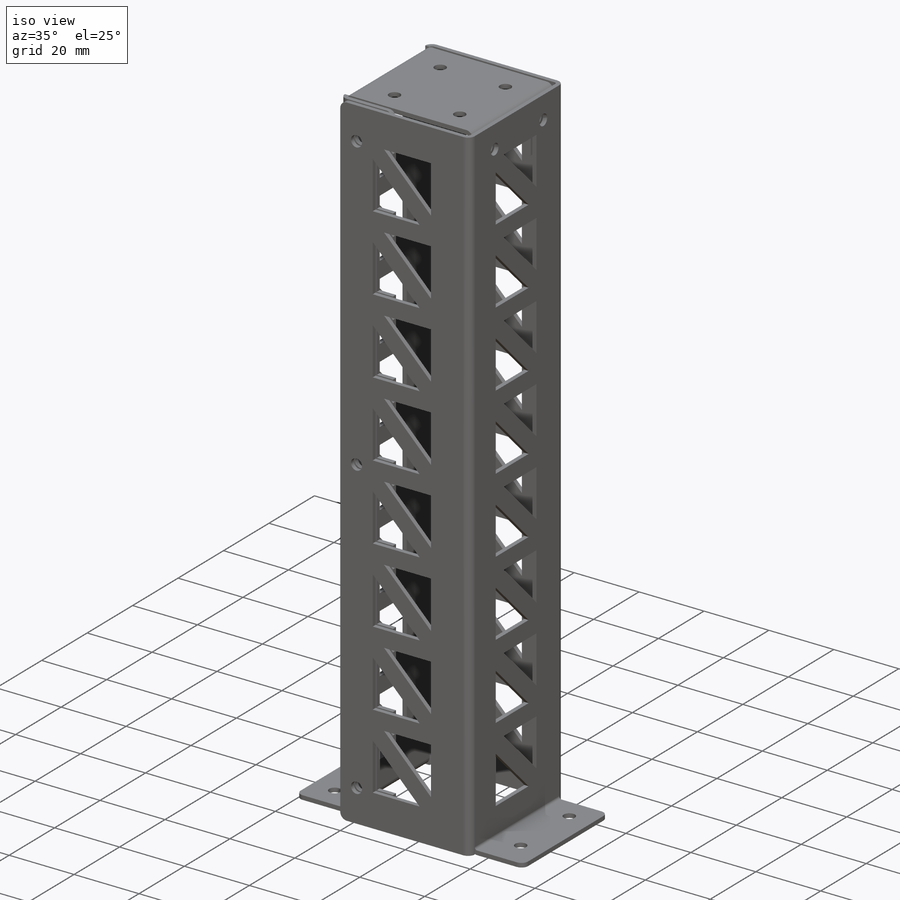
[diagram: iso view]
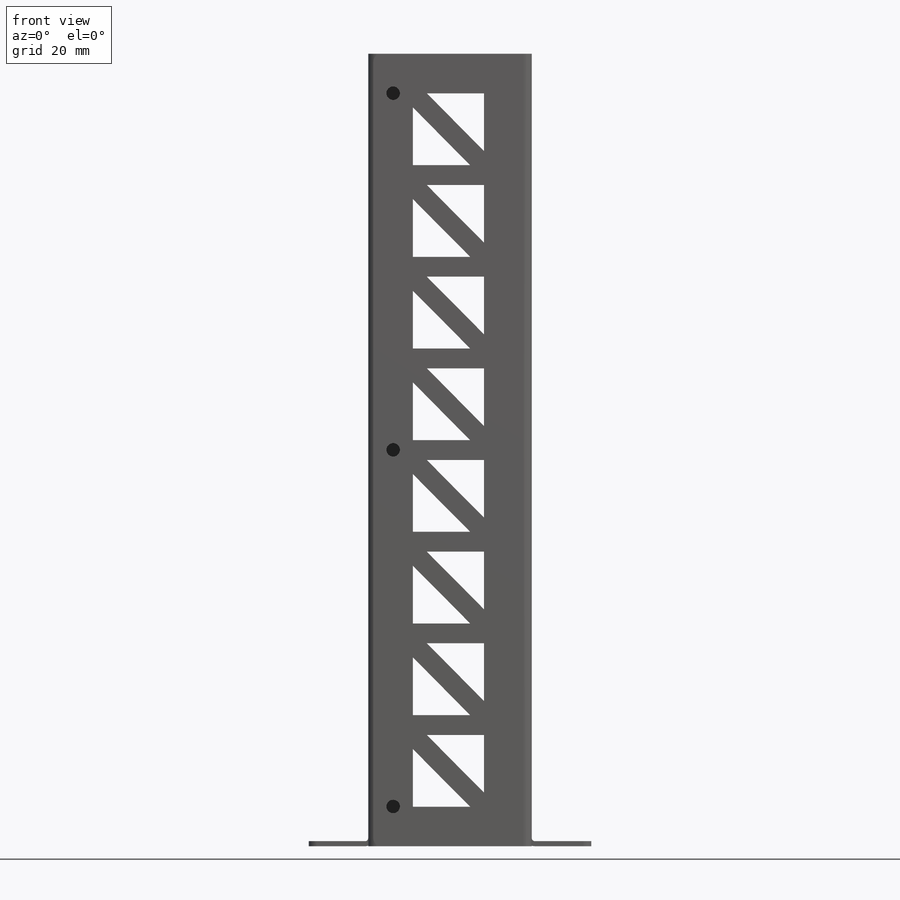
[diagram: front view]
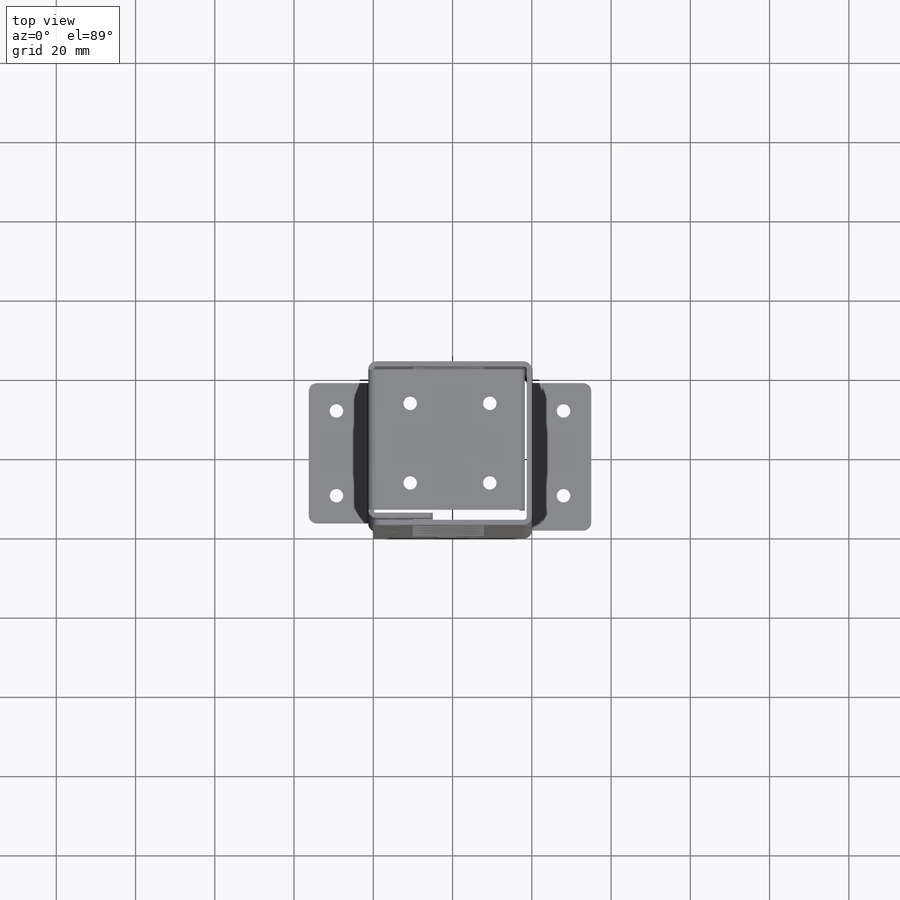
[diagram: top view]
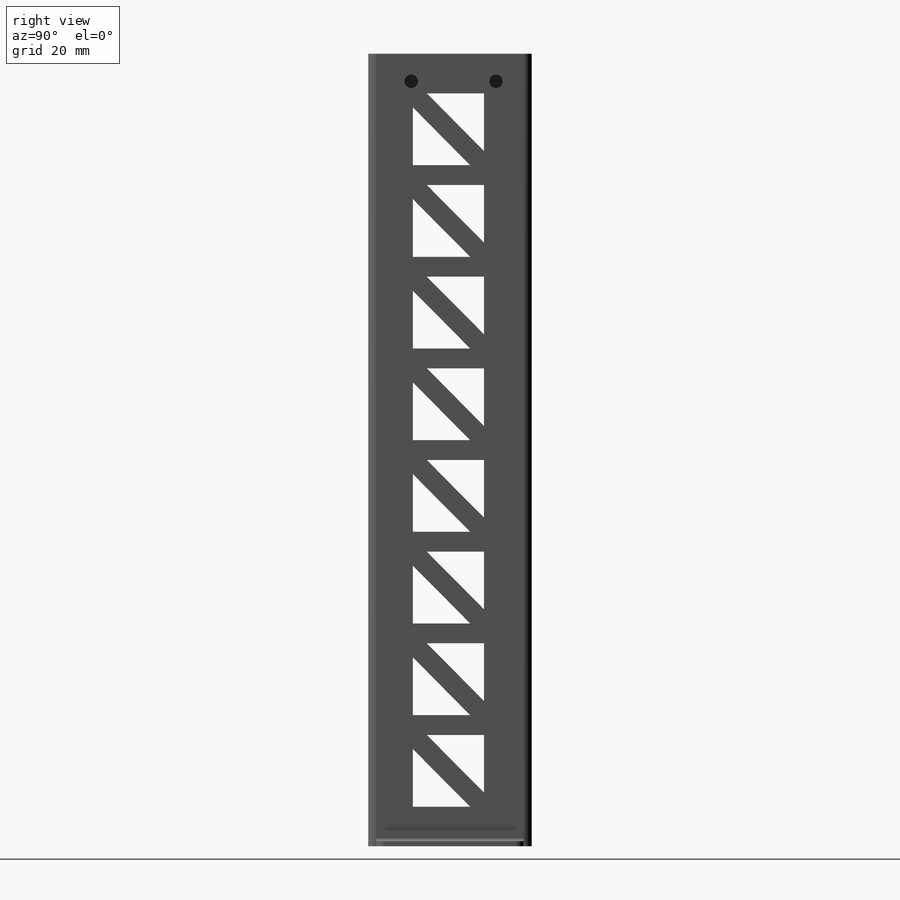
[diagram: right view]
SOLIDWORKS PART (.sldprt)
format: sldprt  version: not decoded by parser v0  size: 1,256,448 bytes
history: native  units: mm
features: sketch x56, sheet_metal_op x25, fillet x17, hole x4, plane x2, material x1, cut_extrude x1, pattern_linear x1, pattern_circular x1, mirror x1 + 100 further entries (+12 scaffold rows collapsed; 17 parser-record rows omitted)
feature tree (238):
  scaffold x12  (default folders/planes/origin — collapsed)
  material  "6061 Alloy"
  sketch  "Sketch2"  dims[c1.D1=~85.204267mm c1.D2=~48.53653mm c2.D1=40.0mm c2.D2=200.0mm c3.D1=0.762mm c3.D2=0.389 c3.D3=1.1938mm c3.D6=500.0mm]
  sheet_metal_op  "Base-Flange1"
  sketch  "Sketch9"  dims[c1.D1=0.762mm c1.D4=90.0deg c1.D5=1.0 c1.D8=0.645mm c1.D9=0.645mm c2.D1=0.762mm c2.D2=500.0mm c2.D3=0.0mm c2.D6=10.0mm c2.D7=40.0mm c2.Edge-Flange2=0.0]
  sketch  "Sketch12"
  sheet_metal_op  "EdgeBend2"  Edge-Flange3=0
  sketch  "Sketch15"  dims[c1.D1=58.0mm c1.D2=0.71mm c2.D1=0.5mm]
  sheet_metal_op  "EdgeBend3"  Edge-Flange4=0
  sketch  "Sketch18"
  sheet_metal_op  "EdgeBend4"  Edge-Flange5=0
  sketch  "Sketch21"
  sheet_metal_op  "EdgeBend5"  Edge-Flange6=0
  sketch  "Sketch24"
  sheet_metal_op  "EdgeBend6"  Edge-Flange8=0
  sketch  "Sketch30"  dims[D1=0.5mm]
  sheet_metal_op  "EdgeBend8"  Edge-Flange9=0
  sketch  "Sketch33"
  sheet_metal_op  "EdgeBend9"
  sketch  "Sketch37"  dims[c1.D2=~29.144602mm c1.D3=~29.144602mm c1.D4=~29.144602mm c1.D5=~29.144602mm c2.D2=42.948mm c2.D3=~48.778031mm c2.D1=7.5mm c3.D2=2.5mm c3.D3=2.5mm c3.D4=2.5mm c3.D5=2.5mm c4.D2=2.5mm c4.D3=2.5mm]
  cut_extrude  "Speed Hole"  [1 undecoded]
  pattern_linear  "Speed Holes"  Count1=8 Count2=1 Spacing1=23.13mm Spacing2=50mm
  plane  "Plane1"
  plane  "Plane2"
  pattern_circular  "Copy of Speed Holes"  Count=2 Angle=90deg
  hole  "M3 Clearance Hole1"  Diameter=3.4mm Depth=12mm
  sketch  "Sketch40"  dims[D1=7.0mm D2=7.0mm D3=7.0mm]
  sketch  "Sketch39"  dims[hole-wizard template sketch: 50 standard entries collapsed; hole parameters above]
  mirror  "Copy of M3 Hole1"
  sketch  "Top Lid Hole Alignment"  dims[c1.D1=~60.087966mm c1.D2=~60.087966mm c2.D1=10.0mm]
  hole  "M3 Clearance Hole2"  Diameter=3.4mm Depth=1.29mm
  sketch  "Sketch43"
  sketch  "Sketch42"  dims[hole-wizard template sketch: 60 standard entries collapsed; hole parameters kept: c18.Thru Hole Depth=1.29mm]
  hole  "M3 Clearance Hole3"  Diameter=3.4mm Depth=3.079mm
  sketch  "Sketch45"  dims[c1.D1=10.0mm c1.D2=10.0mm c2.D1=10.0mm c2.D2=10.0mm]
  sketch  "Sketch44"  dims[hole-wizard template sketch: 47 standard entries collapsed; hole parameters kept: c15.Hole Depth=3.079mm c15.D3=~14.816244mm c15.Drill Angle=118.0deg]
  hole  "M3 Clearance Hole4"  Diameter=3.4mm Depth=3.079mm
  sketch  "Sketch47"  dims[D1=7.0mm D2=7.0mm D3=7.0mm]
  sketch  "Sketch46"  dims[hole-wizard template sketch: 47 standard entries collapsed; hole parameters kept: c15.Hole Depth=3.079mm c15.D3=~14.816244mm c15.Drill Angle=118.0deg]
  fillet  "Fillet1"  Radius=2mm
  sketch  "Bend-Lines1"
  sketch  "Bounding-Box1"
  sheet_metal_op  "Sheet-Metal(1)"
  "Flat-Pattern(1)"
  sketch  "Bend-Lines2"
  sketch  "Bounding-Box2"
  parser-record x17  (decoder bookkeeping rows leaked as tree rows — omitted from the tree; the rows remain in map.json)
  fillet  "Sheet-Metal(2)"  Radius=0.762mm
  sheet_metal_op  "Flat-Pattern(1)"
  sketch  "Bend-Lines2"
  sketch  "Bounding-Box2"
  fillet  "Sheet-Metal(3)"  Radius=0.762mm
  sheet_metal_op  "Flat-Pattern(1)"
  sketch  "Bend-Lines2"
  sketch  "Bounding-Box2"
  "Flatten-<EdgeBend1>1"
  "Flatten-<EdgeBend2>1"
  fillet  "Sheet-Metal(4)"  Radius=0.762mm
  sheet_metal_op  "Flat-Pattern(1)"
  sketch  "Bend-Lines2"
  sketch  "Bounding-Box2"
  "Flatten-<EdgeBend1>1"
  "Flatten-<EdgeBend2>1"
  "Flatten-<EdgeBend3>1"
  fillet  "Sheet-Metal(5)"  Radius=0.762mm
  sheet_metal_op  "Flat-Pattern(1)"
  sketch  "Bend-Lines2"
  sketch  "Bounding-Box2"
  "Flatten-<EdgeBend1>1"
  "Flatten-<EdgeBend2>1"
  "Flatten-<EdgeBend3>1"
  "Flatten-<EdgeBend4>1"
  fillet  "Sheet-Metal(6)"  Radius=0.762mm
  sheet_metal_op  "Flat-Pattern(1)"
  sketch  "Bend-Lines2"
  sketch  "Bounding-Box2"
  "Flatten-<EdgeBend1>1"
  "Flatten-<EdgeBend2>1"
  "Flatten-<EdgeBend3>1"
  "Flatten-<EdgeBend4>1"
  "Flatten-<EdgeBend5>1"
  fillet  "Sheet-Metal(7)"  Radius=0.762mm
  sheet_metal_op  "Flat-Pattern(1)"
  sketch  "Bend-Lines2"
  sketch  "Bounding-Box2"
  "Flatten-<EdgeBend1>1"
  "Flatten-<EdgeBend2>1"
  "Flatten-<EdgeBend3>1"
  "Flatten-<EdgeBend4>1"
  "Flatten-<EdgeBend5>1"
  "Flatten-<EdgeBend6>1"
  fillet  "Sheet-Metal(9)"  Radius=0.762mm
  sheet_metal_op  "Flat-Pattern(1)"
  sketch  "Bend-Lines2"
  sketch  "Bounding-Box2"
  "Flatten-<EdgeBend1>1"
  "Flatten-<EdgeBend2>1"
  "Flatten-<EdgeBend3>1"
  "Flatten-<EdgeBend4>1"
  "Flatten-<EdgeBend5>1"
  "Flatten-<EdgeBend6>1"
  "Flatten-<EdgeBend8>1"
  fillet  "Sheet-Metal(10)"  Radius=0.762mm
  sheet_metal_op  "Flat-Pattern(1)"
  sketch  "Bend-Lines2"
  sketch  "Bounding-Box2"
  "Flatten-<EdgeBend1>1"
  "Flatten-<EdgeBend2>1"
  "Flatten-<EdgeBend3>1"
  "Flatten-<EdgeBend4>1"
  "Flatten-<EdgeBend5>1"
  "Flatten-<EdgeBend6>1"
  "Flatten-<EdgeBend8>1"
  "Flatten-<EdgeBend9>1"
  fillet  "Sheet-Metal(14)"  Radius=0.762mm
  sheet_metal_op  "Flat-Pattern(1)"
  sketch  "Bend-Lines2"
  sketch  "Bounding-Box2"
  "Flatten-<EdgeBend1>1"
  "Flatten-<EdgeBend2>1"
  "Flatten-<EdgeBend3>1"
  "Flatten-<EdgeBend4>1"
  "Flatten-<EdgeBend5>1"
  "Flatten-<EdgeBend6>1"
  "Flatten-<EdgeBend8>1"
  "Flatten-<EdgeBend9>1"
  fillet  "Sheet-Metal(15)"  Radius=0.762mm
  sheet_metal_op  "Flat-Pattern(1)"
  sketch  "Bend-Lines2"
  sketch  "Bounding-Box2"
  "Flatten-<EdgeBend1>1"
  "Flatten-<EdgeBend2>1"
  "Flatten-<EdgeBend3>1"
  "Flatten-<EdgeBend4>1"
  "Flatten-<EdgeBend5>1"
  "Flatten-<EdgeBend6>1"
  "Flatten-<EdgeBend8>1"
  "Flatten-<EdgeBend9>1"
  fillet  "Sheet-Metal(17)"  Radius=0.762mm
  sheet_metal_op  "Flat-Pattern(1)"
  sketch  "Bend-Lines2"
  sketch  "Bounding-Box2"
  "Flatten-<EdgeBend6>1"
  "Flatten-<EdgeBend5>1"
  "Flatten-<EdgeBend4>1"
  "Flatten-<EdgeBend3>1"
  "Flatten-<EdgeBend2>1"
  "Flatten-<EdgeBend1>1"
  "Flatten-<EdgeBend8>1"
  "Flatten-<EdgeBend9>1"
  fillet  "Sheet-Metal(18)"  Radius=0.762mm
  sheet_metal_op  "Flat-Pattern(1)"
  sketch  "Bend-Lines2"
  sketch  "Bounding-Box2"
  "Flatten-<EdgeBend1>1"
  "Flatten-<EdgeBend2>1"
  "Flatten-<EdgeBend3>1"
  "Flatten-<EdgeBend4>1"
  "Flatten-<EdgeBend5>1"
  "Flatten-<EdgeBend6>1"
  "Flatten-<EdgeBend8>1"
  "Flatten-<EdgeBend9>1"
  fillet  "Sheet-Metal(19)"  Radius=0.762mm
  sheet_metal_op  "Flat-Pattern(1)"
  sketch  "Bend-Lines2"
  sketch  "Bounding-Box2"
  "Flatten-<EdgeBend1>1"
  "Flatten-<EdgeBend2>1"
  "Flatten-<EdgeBend3>1"
  "Flatten-<EdgeBend4>1"
  "Flatten-<EdgeBend5>1"
  "Flatten-<EdgeBend6>1"
  "Flatten-<EdgeBend8>1"
  "Flatten-<EdgeBend9>1"
  fillet  "Sheet-Metal(20)"  Radius=0.762mm
  sheet_metal_op  "Flat-Pattern(1)"
  sketch  "Bend-Lines2"
  sketch  "Bounding-Box2"
  "Flatten-<EdgeBend1>1"
  "Flatten-<EdgeBend2>1"
  "Flatten-<EdgeBend3>1"
  "Flatten-<EdgeBend4>1"
  "Flatten-<EdgeBend5>1"
  "Flatten-<EdgeBend6>1"
  "Flatten-<EdgeBend8>1"
  "Flatten-<EdgeBend9>1"
  fillet  "Sheet-Metal(21)"  Radius=0.762mm
  sheet_metal_op  "Flat-Pattern(1)"
  sketch  "Bend-Lines2"
  sketch  "Bounding-Box2"
  "Flatten-<EdgeBend1>1"
  "Flatten-<EdgeBend2>1"
  "Flatten-<EdgeBend3>1"
  "Flatten-<EdgeBend4>1"
  "Flatten-<EdgeBend5>1"
  "Flatten-<EdgeBend6>1"
  "Flatten-<EdgeBend8>1"
  "Flatten-<EdgeBend9>1"
  fillet  "Sheet-Metal(22)"  Radius=0.762mm
  sheet_metal_op  "Flat-Pattern(1)"
  sketch  "Bend-Lines2"
  sketch  "Bounding-Box2"
  "Flatten-<EdgeBend1>1"
  "Flatten-<EdgeBend2>1"
  "Flatten-<EdgeBend3>1"
  "Flatten-<EdgeBend4>1"
  "Flatten-<EdgeBend5>1"
  "Flatten-<EdgeBend6>1"
  "Flatten-<EdgeBend8>1"
  "Flatten-<EdgeBend9>1"
  sketch  "Top Lide Hole Alignment-1"  dims[c1.D1=~60.087966mm c1.D2=~60.087966mm c2.D1=10.0mm]
decode coverage: 43 of 106 modeling features carry decoded parameters; 100 rows unclassified (native names shown)
note: ~ marks probable driven/reference dimensions
note: 1 parameter value undecoded
summary: Diameter pulled from absorbed wizard sketch
note: suppression state not decoded; provenance and decode notes live in map.json
